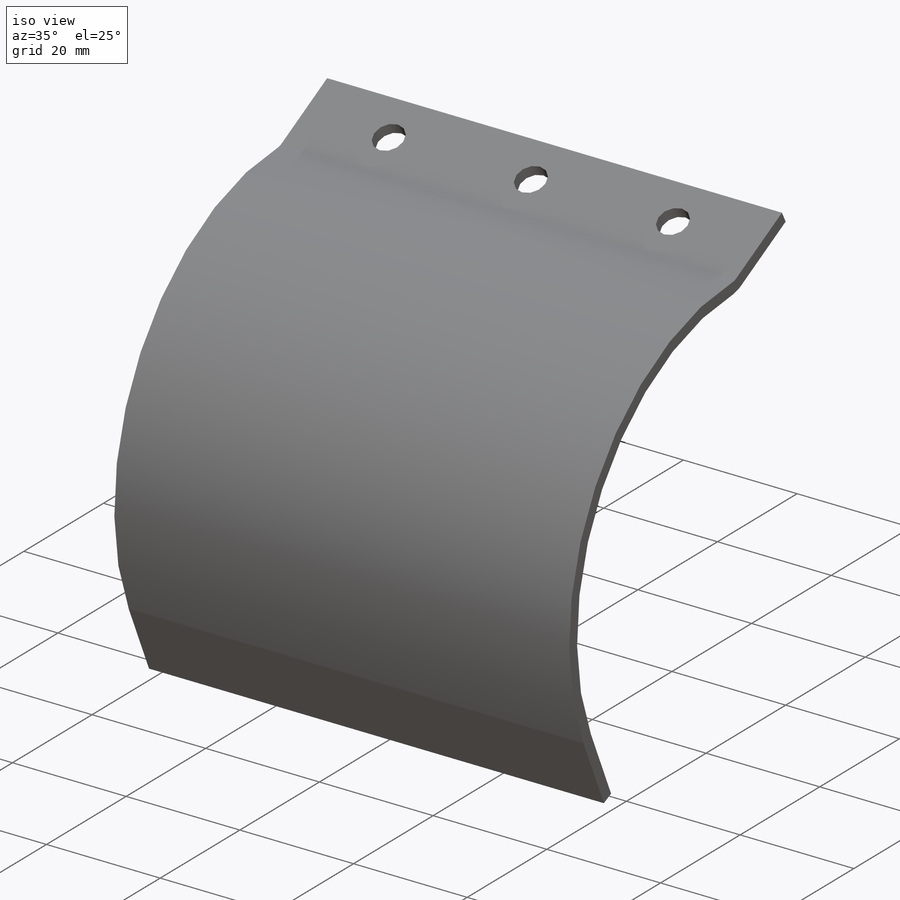
[diagram: iso view]
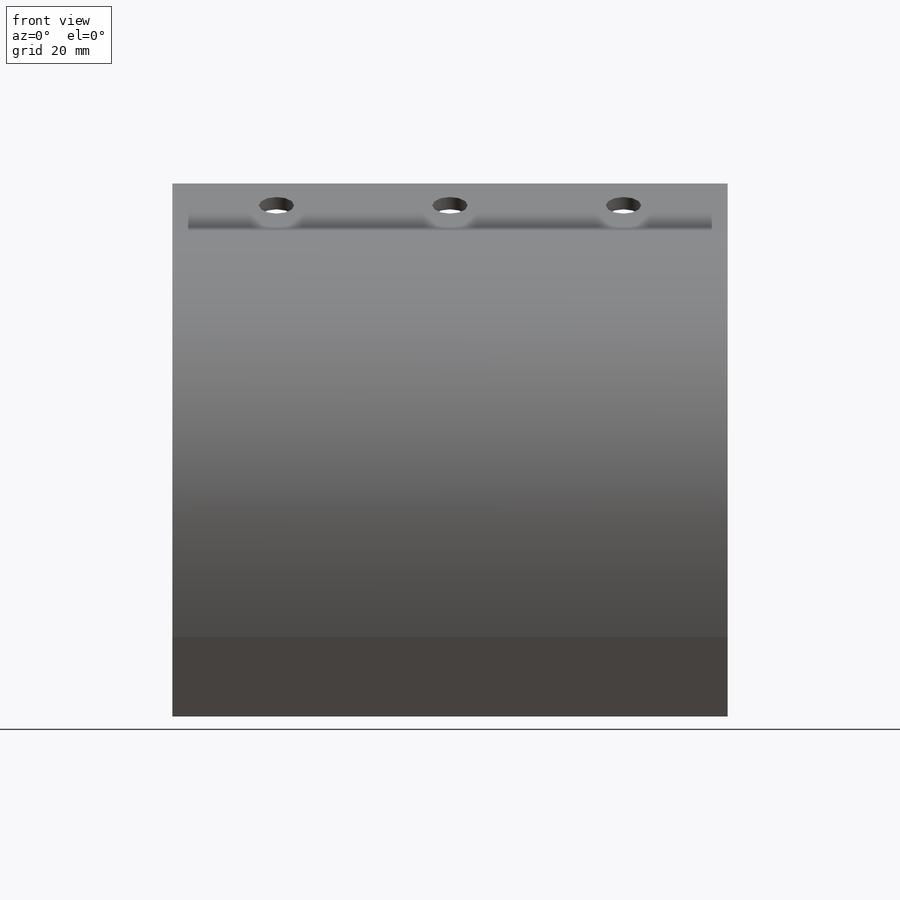
[diagram: front view]
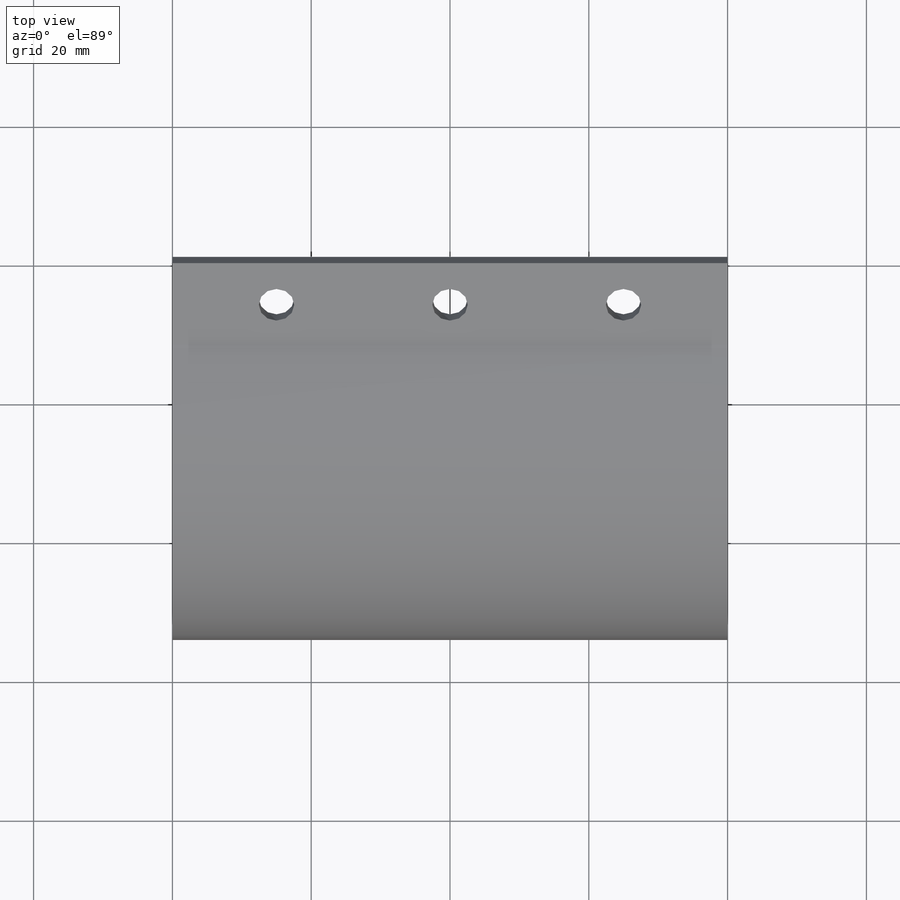
[diagram: top view]
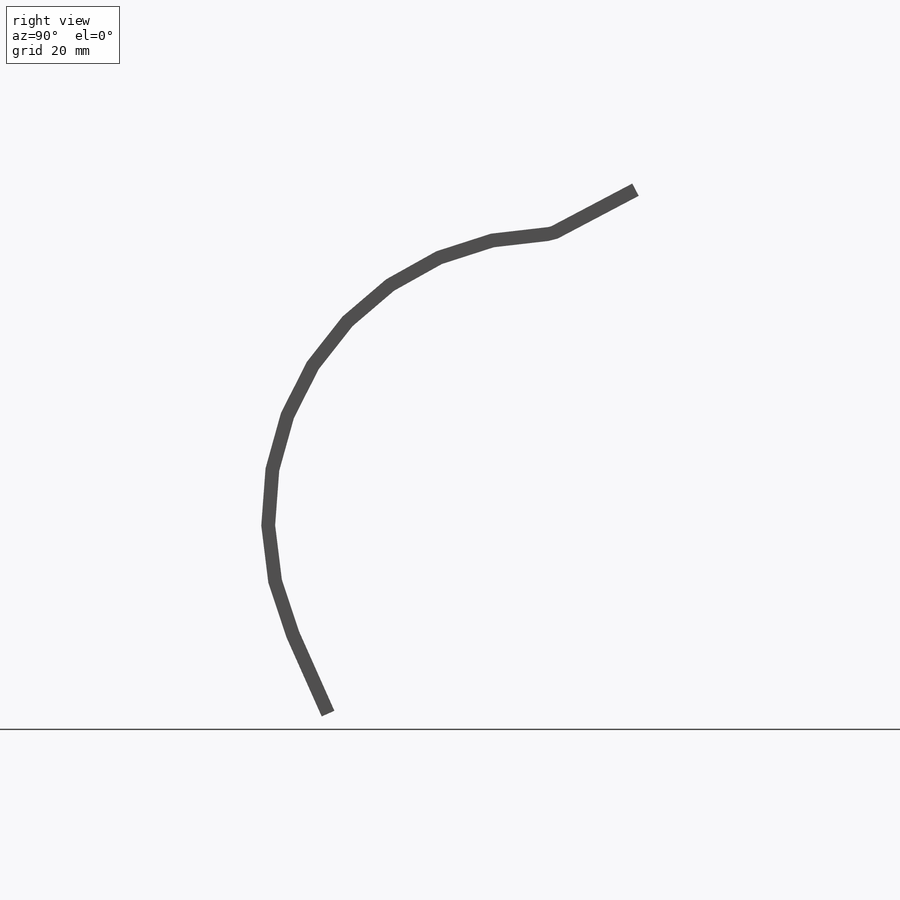
[diagram: right view]
SOLIDWORKS PART (.sldprt)
format: sldprt  version: not decoded by parser v0  size: 256,512 bytes
history: native  units: mm
features: sketch x9, plane x3, fillet x2, sheet_metal_op x2, material x1, hole x1 + 1 further entry (+9 scaffold rows collapsed; 1 parser-record rows omitted)
feature tree (29):
  scaffold x9  (default folders/planes/origin — collapsed)
  material  "Material <nicht festgelegt>"
  plane  "Ebene vorne"
  plane  "Ebene oben"
  plane  "Ebene rechts"
  sketch  "Skizze1"  dims[c1.D2=80.0mm c1.D1=~35.82192mm c2.D1=27.8deg c2.D3=12.4mm c2.D4=46.5mm c2.D5=40.0mm c3.D5=66.0deg c3.D6=27.7mm c3.D7=31.5mm c3.D1=80.0mm c4.D6=10.0mm c4.D7=5.0mm]
  hole  "Ø5.1 (5.1) Durchmesser Bohrung1"  Diameter=5.1mm Depth=68.355491mm
  sketch  "Skizze3"  dims[D1=50.0mm D2=25.0mm]
  sketch  "Skizze2"  dims[hole-wizard template sketch: 59 standard entries collapsed; hole parameters kept: c18.Bohrerdurchmesser=5.1mm c18.Bohrungstiefe=~68.355491mm]
  fillet  "Verrundung1"  Radius=1mm
  fillet  "Verrundung2"  Radius=3mm
  sketch  "Skizze-Winkel1"  dims[c1.D1=1.0mm c1.D4=~26.892556deg c1.D5=1.0 c1.D8=0.0mm c1.D9=0.0mm c1.Biegung-Rundung6=0.0 c2.D1=40.0mm c2.D4=~113.092556deg c2.D5=2.0 c2.D8=0.0mm c2.D9=0.0mm c3.D1=0.0mm]
  sketch  "Abwicklung-Skizze1"  dims[D1=0.0mm]
  sketch  "Biegung-Linien5"
  sketch  "Rahmen5"
  sheet_metal_op  "Blech5"
  "Abwicklung5"
  sketch  "Biegung-Linien6"
  sketch  "Rahmen6"
  sheet_metal_op  "Abwickeln-<Biegung-Rundung6>1"
  parser-record x1  (decoder bookkeeping rows leaked as tree rows — omitted from the tree; the rows remain in map.json)
decode coverage: 8 of 14 modeling features carry decoded parameters; 1 rows unclassified (native names shown)
note: ~ marks probable driven/reference dimensions
note: suppression state not decoded; provenance and decode notes live in map.json
